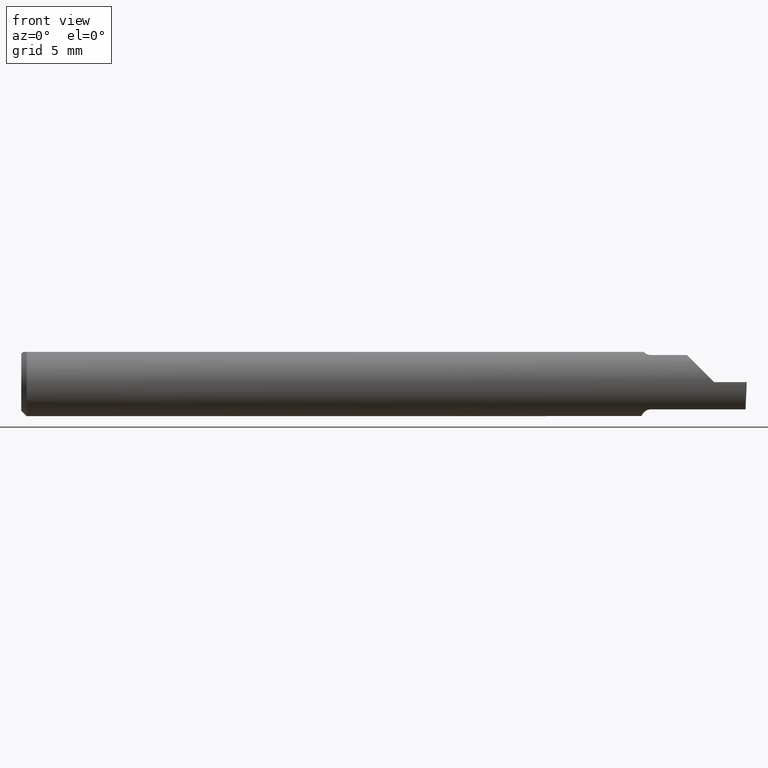
[diagram: clean part render]
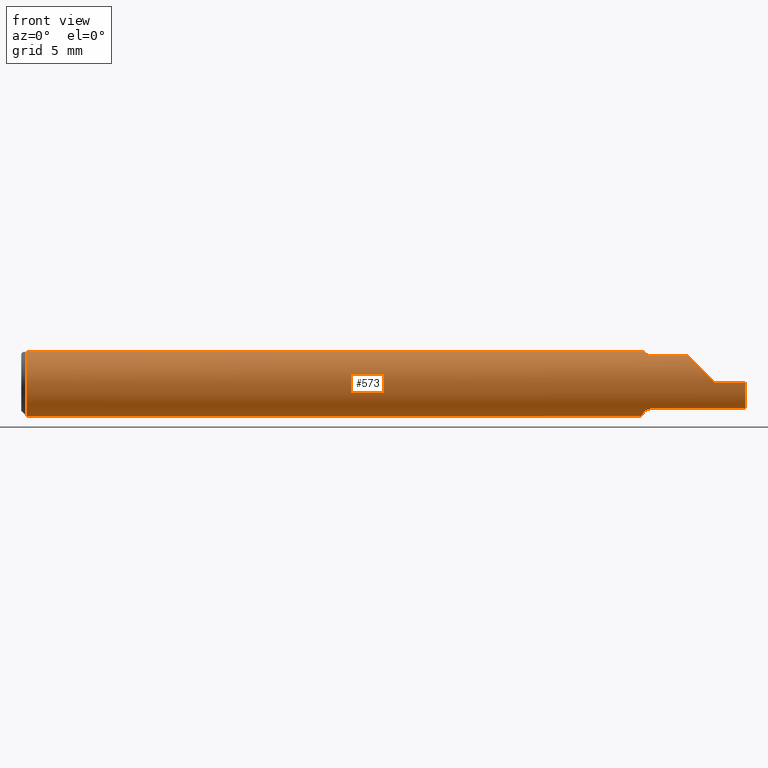
[diagram: same view with one face highlighted and labeled with its STEP entity id]
A machine part, front view. The second image highlights one B-rep face of the part: STEP entity #573.
In plain terms, the highlighted cylindrical surface (edge-blend (fillet) strip) has radius 2.3774 mm, axis along (-1, -0, -0).
Its self-contained STEP definition (entity closure, byte-faithful):
#28 = VECTOR ( 'NONE', #47, 39.37007874015748143 ) ;
#34 = ORIENTED_EDGE ( 'NONE', *, *, #712, .F. ) ;
#40 = CARTESIAN_POINT ( 'NONE',  ( 0.01499999999999999944, 0.000000000000000000, 0.000000000000000000 ) ) ;
#43 = CARTESIAN_POINT ( 'NONE',  ( 1.716356684838558522, -0.04259999999999997122, 0.08334386600104412568 ) ) ;
#46 = EDGE_CURVE ( 'NONE', #482, #488, #611, .T. ) ;
#47 = DIRECTION ( 'NONE',  ( 1.000000000000000000, 0.000000000000000000, 0.000000000000000000 ) ) ;
#62 = EDGE_CURVE ( 'NONE', #678, #363, #440, .T. ) ;
#70 = CARTESIAN_POINT ( 'NONE',  ( 1.709999999999999964, 0.04209513035969834893, 0.08359999999999999376 ) ) ;
#83 =( BOUNDED_CURVE ( )  B_SPLINE_CURVE ( 3, ( #259, #672, #566, #498 ),
 .UNSPECIFIED., .F., .T. ) 
 B_SPLINE_CURVE_WITH_KNOTS ( ( 4, 4 ),
 ( 0.08204942185700569990, 0.9826237902196914842 ),
 .UNSPECIFIED. ) 
 CURVE ( )  GEOMETRIC_REPRESENTATION_ITEM ( )  RATIONAL_B_SPLINE_CURVE ( ( 1.000000000000000000, 0.9335481000009943076, 0.9335481000009943076, 1.000000000000000000 ) ) 
 REPRESENTATION_ITEM ( '' )  );
#86 = CARTESIAN_POINT ( 'NONE',  ( 1.716356684838558522, -0.04259999999999997122, 0.08334386600104412568 ) ) ;
#106 = CARTESIAN_POINT ( 'NONE',  ( 1.730389214148234434, -0.05750155061631038317, 0.07386444488392700236 ) ) ;
#111 = CARTESIAN_POINT ( 'NONE',  ( 1.709999999999999964, -0.006757276995305157297, -0.09335576686851604356 ) ) ;
#126 = ORIENTED_EDGE ( 'NONE', *, *, #46, .F. ) ;
#128 = LINE ( 'NONE', #497, #769 ) ;
#129 = CARTESIAN_POINT ( 'NONE',  ( 1.720264545693809488, -0.04993027844100267343, -0.07924826417278510449 ) ) ;
#130 = VERTEX_POINT ( 'NONE', #294 ) ;
#131 = FACE_OUTER_BOUND ( 'NONE', #549, .T. ) ;
#135 = EDGE_CURVE ( 'NONE', #582, #160, #170, .T. ) ;
#138 = CARTESIAN_POINT ( 'NONE',  ( 1.718086474849918055, -0.04638796853538176834, -0.08140770120152256151 ) ) ;
#142 = DIRECTION ( 'NONE',  ( -1.000000000000000000, -0.000000000000000000, -0.000000000000000000 ) ) ;
#145 = CARTESIAN_POINT ( 'NONE',  ( 0.01499999999999999598, 0.04209513035969836975, 0.08359999999999999376 ) ) ;
#159 = DIRECTION ( 'NONE',  ( 0.000000000000000000, 0.000000000000000000, 1.000000000000000000 ) ) ;
#160 = VERTEX_POINT ( 'NONE', #562 ) ;
#164 = VERTEX_POINT ( 'NONE', #255 ) ;
#166 = DIRECTION ( 'NONE',  ( -1.000000000000000000, -0.000000000000000000, -0.000000000000000000 ) ) ;
#170 = LINE ( 'NONE', #774, #718 ) ;
#179 = CARTESIAN_POINT ( 'NONE',  ( 0.01499999999999999944, 0.000000000000000000, -0.09359999999999998876 ) ) ;
#180 = CARTESIAN_POINT ( 'NONE',  ( 1.710436655799338901, -0.01945041057485635827, -0.09177104786119411051 ) ) ;
#181 = ORIENTED_EDGE ( 'NONE', *, *, #242, .T. ) ;
#182 = CARTESIAN_POINT ( 'NONE',  ( 0.000000000000000000, -0.04209513035969836975, 0.08359999999999999376 ) ) ;
#183 = CARTESIAN_POINT ( 'NONE',  ( 1.716356684838558522, -0.04259999999999997122, -0.08334386600104412568 ) ) ;
#184 = EDGE_CURVE ( 'NONE', #160, #678, #746, .T. ) ;
#187 = CARTESIAN_POINT ( 'NONE',  ( 0.000000000000000000, 0.000000000000000000, 0.000000000000000000 ) ) ;
#191 = CYLINDRICAL_SURFACE ( 'NONE', #446, 0.09359999999999998876 ) ;
#197 = CARTESIAN_POINT ( 'NONE',  ( 1.996788249052547259, -0.09359999022555408332, -4.277588313355801215E-05 ) ) ;
#202 = DIRECTION ( 'NONE',  ( 1.000000000000000000, 0.000000000000000000, 0.000000000000000000 ) ) ;
#204 = CARTESIAN_POINT ( 'NONE',  ( 1.716129652885479251, -0.04209513035970091632, 0.08359999999999999376 ) ) ;
#229 = CARTESIAN_POINT ( 'NONE',  ( 0.01499999999999999944, 0.000000000000000000, 0.000000000000000000 ) ) ;
#232 = AXIS2_PLACEMENT_3D ( 'NONE', #40, #463, #159 ) ;
#236 = CARTESIAN_POINT ( 'NONE',  ( 1.854749999999999899, -0.05810704225352111146, -0.07337936794867826185 ) ) ;
#238 = CARTESIAN_POINT ( 'NONE',  ( 1.713953896433695334, -0.03733827064844358334, -0.08603332211978831356 ) ) ;
#241 = LINE ( 'NONE', #182, #28 ) ;
#242 = EDGE_CURVE ( 'NONE', #164, #582, #83, .T. ) ;
#243 = CARTESIAN_POINT ( 'NONE',  ( 1.709999999999999964, -0.006757276995305157297, -0.09335576686851604356 ) ) ;
#255 = CARTESIAN_POINT ( 'NONE',  ( 1.995486889784650053, -0.05810704225352111146, -0.07337936794867826185 ) ) ;
#259 = CARTESIAN_POINT ( 'NONE',  ( 1.995486889784650053, -0.05810704225352111146, -0.07337936794867826185 ) ) ;
#260 = VERTEX_POINT ( 'NONE', #145 ) ;
#265 = VERTEX_POINT ( 'NONE', #376 ) ;
#269 = EDGE_CURVE ( 'NONE', #130, #482, #353, .T. ) ;
#270 = VERTEX_POINT ( 'NONE', #737 ) ;
#277 = VERTEX_POINT ( 'NONE', #70 ) ;
#278 = CIRCLE ( 'NONE', #744, 0.09359999999999998876 ) ;
#294 = CARTESIAN_POINT ( 'NONE',  ( 1.734999999999999876, -0.05810704225352107677, -0.07337936794867828960 ) ) ;
#296 = EDGE_CURVE ( 'NONE', #499, #270, #564, .T. ) ;
#310 = CARTESIAN_POINT ( 'NONE',  ( 1.854690286057537829, -0.08092595952420826577, 0.05530971394246238237 ) ) ;
#314 = ORIENTED_EDGE ( 'NONE', *, *, #585, .F. ) ;
#318 = CARTESIAN_POINT ( 'NONE',  ( 1.726446782524423851, -0.05558685324519236498, -0.07531605361338913895 ) ) ;
#319 = EDGE_CURVE ( 'NONE', #521, #265, #400, .T. ) ;
#329 = VECTOR ( 'NONE', #724, 39.37007874015748143 ) ;
#331 = CARTESIAN_POINT ( 'NONE',  ( 1.734999999999999876, -0.05810704225352107677, -0.07337936794867828960 ) ) ;
#353 = B_SPLINE_CURVE_WITH_KNOTS ( 'NONE', 3,
 ( #331, #740, #502, #318, #669, #129, #138, #372 ),
 .UNSPECIFIED., .F., .F.,
 ( 4, 2, 2, 4 ),
 ( 1.968126669309311202E-07, 0.0001761966947278606531, 0.0003521965767887903819, 0.0007041963409106363411 ),
 .UNSPECIFIED. ) ;
#358 = CARTESIAN_POINT ( 'NONE',  ( 1.880893035518783396, -0.09359999999999998876, 0.02910696448121675300 ) ) ;
#360 = ORIENTED_EDGE ( 'NONE', *, *, #319, .F. ) ;
#363 = VERTEX_POINT ( 'NONE', #696 ) ;
#366 = ORIENTED_EDGE ( 'NONE', *, *, #675, .F. ) ;
#372 = CARTESIAN_POINT ( 'NONE',  ( 1.716356684838558522, -0.04259999999999997122, -0.08334386600104412568 ) ) ;
#374 = CARTESIAN_POINT ( 'NONE',  ( 1.910000000000000142, -0.09359999999999998876, 1.102182119232621301E-17 ) ) ;
#376 = CARTESIAN_POINT ( 'NONE',  ( 1.734999999999999876, -0.05810704225352114616, 0.07337936794867826185 ) ) ;
#377 = ORIENTED_EDGE ( 'NONE', *, *, #135, .T. ) ;
#382 = ORIENTED_EDGE ( 'NONE', *, *, #741, .F. ) ;
#391 = CARTESIAN_POINT ( 'NONE',  ( 1.716129652885479251, -0.04209513035970091632, 0.08359999999999999376 ) ) ;
#398 = ORIENTED_EDGE ( 'NONE', *, *, #296, .F. ) ;
#400 = B_SPLINE_CURVE_WITH_KNOTS ( 'NONE', 3,
 ( #43, #636, #516, #405, #642, #106, #580, #707 ),
 .UNSPECIFIED., .F., .F.,
 ( 4, 2, 2, 4 ),
 ( 1.584523690453504654E-05, 0.0003656721978374873235, 0.0005405856783039566247, 0.0007154991587704259259 ),
 .UNSPECIFIED. ) ;
#405 = CARTESIAN_POINT ( 'NONE',  ( 1.724746577633804234, -0.05429945193459818215, 0.07626038032150796175 ) ) ;
#407 = VECTOR ( 'NONE', #685, 39.37007874015748143 ) ;
#410 = ORIENTED_EDGE ( 'NONE', *, *, #438, .F. ) ;
#416 = LINE ( 'NONE', #236, #329 ) ;
#427 = CARTESIAN_POINT ( 'NONE',  ( 1.910000000000000142, -0.09359999999999998876, 1.102182119232621301E-17 ) ) ;
#432 = VECTOR ( 'NONE', #142, 39.37007874015748143 ) ;
#438 = EDGE_CURVE ( 'NONE', #164, #130, #416, .T. ) ;
#440 =( BOUNDED_CURVE ( )  B_SPLINE_CURVE ( 3, ( #427, #358, #310, #490 ),
 .UNSPECIFIED., .F., .T. ) 
 B_SPLINE_CURVE_WITH_KNOTS ( ( 4, 4 ),
 ( 4.712388980384689674, 5.613420356061718408 ),
 .UNSPECIFIED. ) 
 CURVE ( )  GEOMETRIC_REPRESENTATION_ITEM ( )  RATIONAL_B_SPLINE_CURVE ( ( 1.000000000000000000, 0.9334817841311876530, 0.9334817841311876530, 1.000000000000000000 ) ) 
 REPRESENTATION_ITEM ( '' )  );
#446 = AXIS2_PLACEMENT_3D ( 'NONE', #187, #682, #546 ) ;
#463 = DIRECTION ( 'NONE',  ( -1.000000000000000000, -0.000000000000000000, -0.000000000000000000 ) ) ;
#478 = DIRECTION ( 'NONE',  ( 0.02617296143184117893, -0.0004568507411563394447, 0.9996573249755575929 ) ) ;
#482 = VERTEX_POINT ( 'NONE', #539 ) ;
#488 = VERTEX_POINT ( 'NONE', #111 ) ;
#490 = CARTESIAN_POINT ( 'NONE',  ( 1.836620632051322310, -0.05810704225352111840, 0.07337936794867826185 ) ) ;
#497 = CARTESIAN_POINT ( 'NONE',  ( 1.854749999999999899, -0.05810704225352111146, 0.07337936794867826185 ) ) ;
#498 = CARTESIAN_POINT ( 'NONE',  ( 1.996788249052547259, -0.09359999022555408332, -4.277588313355801215E-05 ) ) ;
#499 = VERTEX_POINT ( 'NONE', #179 ) ;
#500 = EDGE_CURVE ( 'NONE', #260, #499, #706, .T. ) ;
#502 = CARTESIAN_POINT ( 'NONE',  ( 1.730389671955115949, -0.05750350940205801314, -0.07386306649500064270 ) ) ;
#509 = CARTESIAN_POINT ( 'NONE',  ( 1.709999999999999964, 0.000000000000000000, 0.000000000000000000 ) ) ;
#516 = CARTESIAN_POINT ( 'NONE',  ( 1.720259025420519450, -0.04992838138009422083, 0.07925011723318650669 ) ) ;
#521 = VERTEX_POINT ( 'NONE', #600 ) ;
#539 = CARTESIAN_POINT ( 'NONE',  ( 1.716356684838558522, -0.04259999999999997122, -0.08334386600104412568 ) ) ;
#546 = DIRECTION ( 'NONE',  ( 0.000000000000000000, 0.000000000000000000, 1.000000000000000000 ) ) ;
#547 = EDGE_CURVE ( 'NONE', #270, #721, #241, .T. ) ;
#549 = EDGE_LOOP ( 'NONE', ( #181, #377, #670, #598, #366, #360, #382, #643, #398, #780, #314, #34, #126, #563, #410 ) ) ;
#555 = CARTESIAN_POINT ( 'NONE',  ( 2.999519565323743132E-32, -0.09359999999999998876, 2.449293598294717754E-16 ) ) ;
#562 = CARTESIAN_POINT ( 'NONE',  ( 1.996789369178486373, -0.09359999999634724399, 1.965990811775635199E-19 ) ) ;
#563 = ORIENTED_EDGE ( 'NONE', *, *, #269, .F. ) ;
#564 = CIRCLE ( 'NONE', #232, 0.09359999999999998876 ) ;
#566 = CARTESIAN_POINT ( 'NONE',  ( 1.996026586675631709, -0.09358669535931166128, -0.02913391928411207185 ) ) ;
#573 = ADVANCED_FACE ( 'NONE', ( #131 ), #191, .T. ) ;
#579 = CARTESIAN_POINT ( 'NONE',  ( 1.716204482410374155, -0.04226411763296330365, 0.08351490979309547646 ) ) ;
#580 = CARTESIAN_POINT ( 'NONE',  ( 1.732655343791670521, -0.05810704225352126412, 0.07337936794867815082 ) ) ;
#582 = VERTEX_POINT ( 'NONE', #197 ) ;
#585 = EDGE_CURVE ( 'NONE', #277, #260, #608, .T. ) ;
#598 = ORIENTED_EDGE ( 'NONE', *, *, #62, .T. ) ;
#600 = CARTESIAN_POINT ( 'NONE',  ( 1.716356684838558522, -0.04259999999999997122, 0.08334386600104412568 ) ) ;
#604 = DIRECTION ( 'NONE',  ( 0.000000000000000000, 0.000000000000000000, -1.000000000000000000 ) ) ;
#608 = LINE ( 'NONE', #729, #407 ) ;
#611 = B_SPLINE_CURVE_WITH_KNOTS ( 'NONE', 3,
 ( #183, #238, #727, #180, #720, #243 ),
 .UNSPECIFIED., .F., .F.,
 ( 4, 2, 4 ),
 ( 0.0007041963409106363411, 0.001193146413573859584, 0.001682096486237082827 ),
 .UNSPECIFIED. ) ;
#616 = AXIS2_PLACEMENT_3D ( 'NONE', #229, #166, #656 ) ;
#636 = CARTESIAN_POINT ( 'NONE',  ( 1.718098441794898124, -0.04641417426599064866, 0.08139430652501544738 ) ) ;
#642 = CARTESIAN_POINT ( 'NONE',  ( 1.726469028275930961, -0.05559939362423893527, 0.07530665289274068863 ) ) ;
#643 = ORIENTED_EDGE ( 'NONE', *, *, #547, .F. ) ;
#656 = DIRECTION ( 'NONE',  ( 0.000000000000000000, 0.000000000000000000, 1.000000000000000000 ) ) ;
#669 = CARTESIAN_POINT ( 'NONE',  ( 1.724728336617689317, -0.05428341532129051655, -0.07627162539867091140 ) ) ;
#670 = ORIENTED_EDGE ( 'NONE', *, *, #184, .T. ) ;
#671 = DIRECTION ( 'NONE',  ( 1.000000000000000000, 0.000000000000000000, 0.000000000000000000 ) ) ;
#672 = CARTESIAN_POINT ( 'NONE',  ( 1.995561922431087876, -0.08091355869144019330, -0.05531953381055035313 ) ) ;
#675 = EDGE_CURVE ( 'NONE', #265, #363, #128, .T. ) ;
#678 = VERTEX_POINT ( 'NONE', #374 ) ;
#682 = DIRECTION ( 'NONE',  ( -1.000000000000000000, -0.000000000000000000, -0.000000000000000000 ) ) ;
#685 = DIRECTION ( 'NONE',  ( -1.000000000000000000, -0.000000000000000000, -0.000000000000000000 ) ) ;
#696 = CARTESIAN_POINT ( 'NONE',  ( 1.836620632051322310, -0.05810704225352111840, 0.07337936794867826185 ) ) ;
#706 = CIRCLE ( 'NONE', #616, 0.09359999999999998876 ) ;
#707 = CARTESIAN_POINT ( 'NONE',  ( 1.734999999999999876, -0.05810704225352114616, 0.07337936794867826185 ) ) ;
#712 = EDGE_CURVE ( 'NONE', #488, #277, #278, .T. ) ;
#718 = VECTOR ( 'NONE', #478, 39.37007874015748854 ) ;
#720 = CARTESIAN_POINT ( 'NONE',  ( 1.709999999999999742, -0.01308640439514264717, -0.09289765197734373148 ) ) ;
#721 = VERTEX_POINT ( 'NONE', #204 ) ;
#722 = B_SPLINE_CURVE_WITH_KNOTS ( 'NONE', 3,
 ( #391, #579, #749, #86 ),
 .UNSPECIFIED., .F., .F.,
 ( 4, 4 ),
 ( 4.741820243490626067E-07, 1.584523690453504654E-05 ),
 .UNSPECIFIED. ) ;
#724 = DIRECTION ( 'NONE',  ( -1.000000000000000000, -0.000000000000000000, -0.000000000000000000 ) ) ;
#727 = CARTESIAN_POINT ( 'NONE',  ( 1.712415450430337716, -0.03151229630690470518, -0.08835846806355296401 ) ) ;
#729 = CARTESIAN_POINT ( 'NONE',  ( 0.000000000000000000, 0.04209513035969836975, 0.08359999999999999376 ) ) ;
#737 = CARTESIAN_POINT ( 'NONE',  ( 0.01499999999999999944, -0.04209513035969836975, 0.08359999999999999376 ) ) ;
#740 = CARTESIAN_POINT ( 'NONE',  ( 1.732653034764491951, -0.05810704225352129881, -0.07337936794867813695 ) ) ;
#741 = EDGE_CURVE ( 'NONE', #721, #521, #722, .T. ) ;
#744 = AXIS2_PLACEMENT_3D ( 'NONE', #509, #202, #604 ) ;
#746 = LINE ( 'NONE', #555, #432 ) ;
#749 = CARTESIAN_POINT ( 'NONE',  ( 1.716280153739604852, -0.04243240890922538033, 0.08342952773968857760 ) ) ;
#769 = VECTOR ( 'NONE', #671, 39.37007874015748143 ) ;
#774 = CARTESIAN_POINT ( 'NONE',  ( 1.994172072281005237, -0.09355431490906530867, -0.09996576130738771271 ) ) ;
#780 = ORIENTED_EDGE ( 'NONE', *, *, #500, .F. ) ;